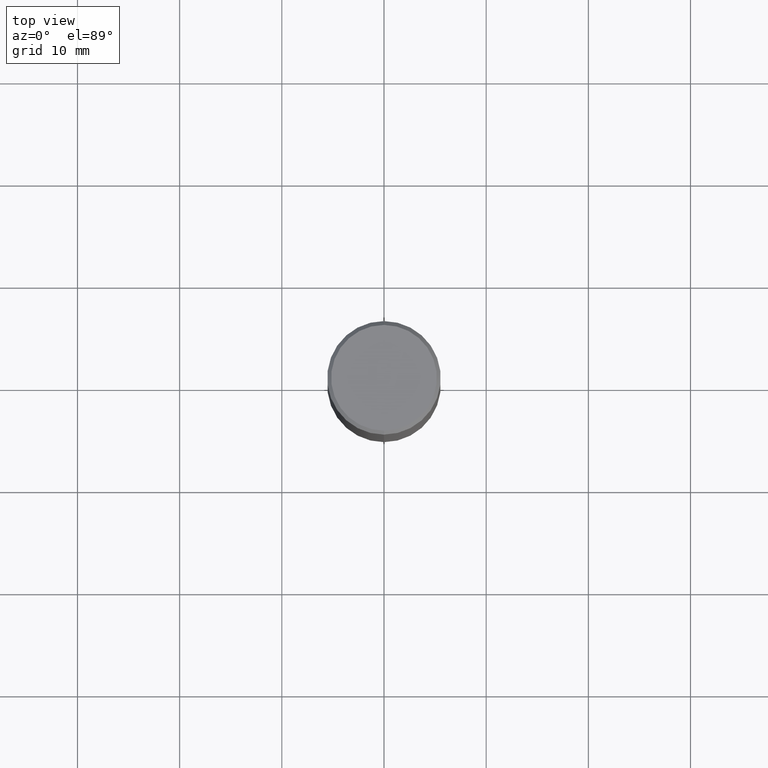
[diagram: clean part render]
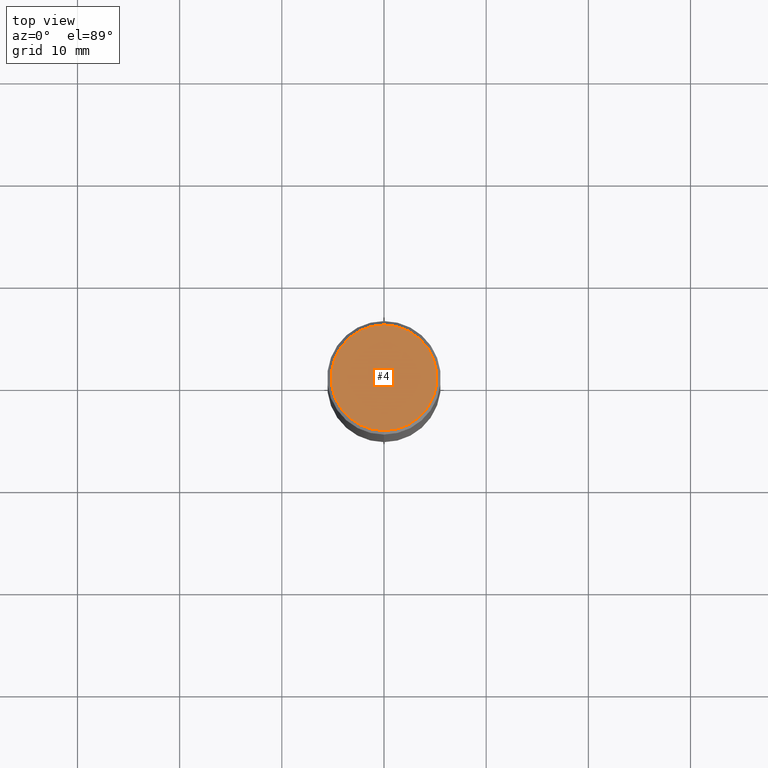
[diagram: same view with one face highlighted and labeled with its STEP entity id]
A machine part, top view. The second image highlights one B-rep face of the part: STEP entity #4.
In plain terms, the highlighted planar face has unit normal (0, -0, -1).
Its self-contained STEP definition (entity closure, byte-faithful):
#4 = ADVANCED_FACE ( 'NONE', ( #391 ), #68, .F. ) ;
#26 = DIRECTION ( 'NONE',  ( -6.982962677686265133E-15, -1.000000000000000000, 3.491530345394105141E-15 ) ) ;
#32 = DIRECTION ( 'NONE',  ( 6.982962677686265922E-15, 1.000000000000000000, -3.491530345394105536E-15 ) ) ;
#51 = AXIS2_PLACEMENT_3D ( 'NONE', #327, #286, #292 ) ;
#68 = PLANE ( 'NONE',  #268 ) ;
#82 = EDGE_LOOP ( 'NONE', ( #289, #495 ) ) ;
#98 = EDGE_CURVE ( 'NONE', #481, #298, #267, .T. ) ;
#103 = CIRCLE ( 'NONE', #146, 0.2037499999999999867 ) ;
#108 = CARTESIAN_POINT ( 'NONE',  ( 1.422778645578576487E-15, 0.2037499999999999867, -8.279976413721720471E-16 ) ) ;
#146 = AXIS2_PLACEMENT_3D ( 'NONE', #387, #253, #26 ) ;
#219 = CARTESIAN_POINT ( 'NONE',  ( 1.475150865661223764E-15, 0.2037499999999999867, -9.445959748702948399E-16 ) ) ;
#253 = DIRECTION ( 'NONE',  ( -2.445434585093504913E-29, 3.491530345394105536E-15, 1.000000000000000000 ) ) ;
#267 = CIRCLE ( 'NONE', #51, 0.2037499999999999867 ) ;
#268 = AXIS2_PLACEMENT_3D ( 'NONE', #108, #269, #32 ) ;
#269 = DIRECTION ( 'NONE',  ( 2.445434585093504633E-29, -3.491530345394105536E-15, -1.000000000000000000 ) ) ;
#286 = DIRECTION ( 'NONE',  ( -2.445434585093504913E-29, 3.491530345394105536E-15, 1.000000000000000000 ) ) ;
#289 = ORIENTED_EDGE ( 'NONE', *, *, #312, .T. ) ;
#292 = DIRECTION ( 'NONE',  ( -6.982962677686265133E-15, -1.000000000000000000, 3.491530345394105141E-15 ) ) ;
#298 = VERTEX_POINT ( 'NONE', #219 ) ;
#312 = EDGE_CURVE ( 'NONE', #298, #481, #103, .T. ) ;
#327 = CARTESIAN_POINT ( 'NONE',  ( 5.702671946011534855E-45, -8.142132392621577057E-31, -2.331966669962461772E-16 ) ) ;
#387 = CARTESIAN_POINT ( 'NONE',  ( 5.702671946011534855E-45, -8.142132392621577057E-31, -2.331966669962461772E-16 ) ) ;
#391 = FACE_OUTER_BOUND ( 'NONE', #82, .T. ) ;
#394 = CARTESIAN_POINT ( 'NONE',  ( -1.449280202029235538E-15, -0.2037499999999999867, 4.782026408778026828E-16 ) ) ;
#481 = VERTEX_POINT ( 'NONE', #394 ) ;
#495 = ORIENTED_EDGE ( 'NONE', *, *, #98, .T. ) ;